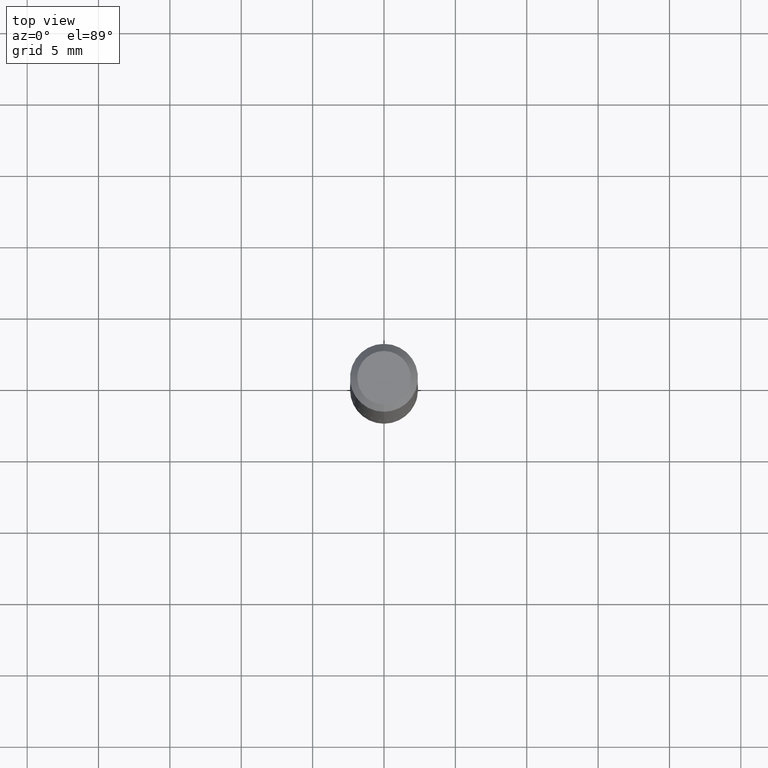
[diagram: clean part render]
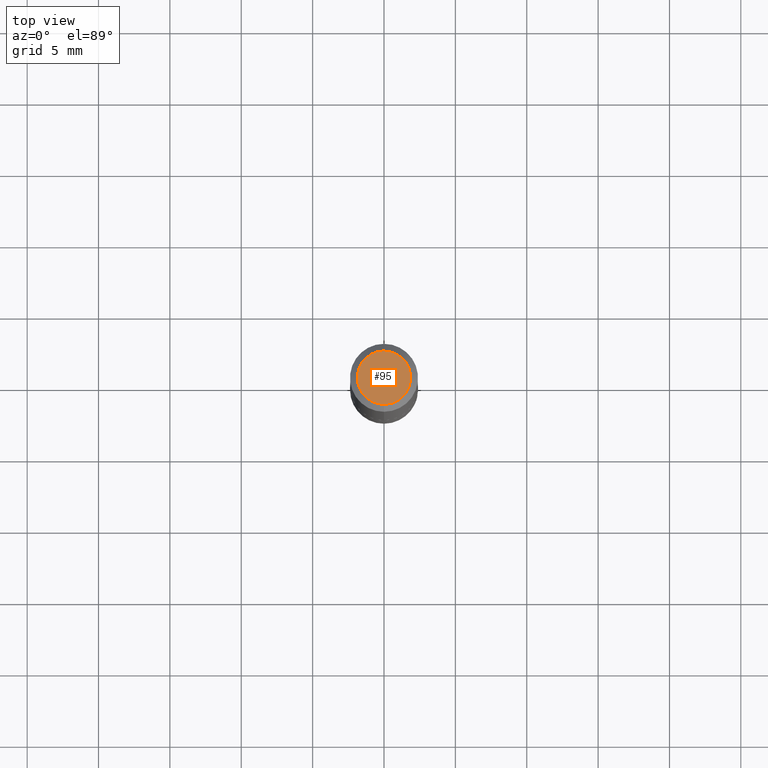
[diagram: same view with one face highlighted and labeled with its STEP entity id]
A machine part, top view. The second image highlights one B-rep face of the part: STEP entity #95.
In plain terms, the highlighted planar face has unit normal (0, -0, -1).
Its self-contained STEP definition (entity closure, byte-faithful):
#23 = ORIENTED_EDGE ( 'NONE', *, *, #154, .T. ) ;
#24 = DIRECTION ( 'NONE',  ( 2.444797333483953089E-29, -3.492442925969092620E-15, -1.000000000000000000 ) ) ;
#29 = CIRCLE ( 'NONE', #395, 0.07375000000000000999 ) ;
#30 = AXIS2_PLACEMENT_3D ( 'NONE', #272, #24, #306 ) ;
#57 = CARTESIAN_POINT ( 'NONE',  ( -6.278726553849778280E-46, 8.969289125425528384E-32, 2.568199199114100289E-17 ) ) ;
#85 = FACE_OUTER_BOUND ( 'NONE', #122, .T. ) ;
#95 = ADVANCED_FACE ( 'NONE', ( #85 ), #147, .F. ) ;
#110 = CARTESIAN_POINT ( 'NONE',  ( 5.848231242562249948E-16, 0.07375000000000000999, -2.318856737990796194E-16 ) ) ;
#121 = DIRECTION ( 'NONE',  ( -2.444797333483953649E-29, 3.492442925969092226E-15, 1.000000000000000000 ) ) ;
#122 = EDGE_LOOP ( 'NONE', ( #23, #287 ) ) ;
#147 = PLANE ( 'NONE',  #30 ) ;
#154 = EDGE_CURVE ( 'NONE', #216, #273, #193, .T. ) ;
#193 = CIRCLE ( 'NONE', #248, 0.07375000000000000999 ) ;
#194 = CARTESIAN_POINT ( 'NONE',  ( -6.278726553849778280E-46, 8.969289125425528384E-32, 2.568199199114100289E-17 ) ) ;
#216 = VERTEX_POINT ( 'NONE', #110 ) ;
#244 = DIRECTION ( 'NONE',  ( -6.982962677686265922E-15, -1.000000000000000000, 3.492442925969092226E-15 ) ) ;
#248 = AXIS2_PLACEMENT_3D ( 'NONE', #57, #121, #244 ) ;
#259 = EDGE_CURVE ( 'NONE', #273, #216, #29, .T. ) ;
#272 = CARTESIAN_POINT ( 'NONE',  ( 5.149934974793621896E-16, 0.07375000000000000999, -2.447266697946501316E-16 ) ) ;
#273 = VERTEX_POINT ( 'NONE', #292 ) ;
#287 = ORIENTED_EDGE ( 'NONE', *, *, #259, .T. ) ;
#292 = CARTESIAN_POINT ( 'NONE',  ( -5.745667073133654568E-16, -0.07375000000000000999, 2.832496577813616190E-16 ) ) ;
#306 = DIRECTION ( 'NONE',  ( 6.982962677686265922E-15, 1.000000000000000000, -3.492442925969092620E-15 ) ) ;
#364 = DIRECTION ( 'NONE',  ( -6.982962677686265922E-15, -1.000000000000000000, 3.492442925969092226E-15 ) ) ;
#389 = DIRECTION ( 'NONE',  ( -2.444797333483953649E-29, 3.492442925969092226E-15, 1.000000000000000000 ) ) ;
#395 = AXIS2_PLACEMENT_3D ( 'NONE', #194, #389, #364 ) ;